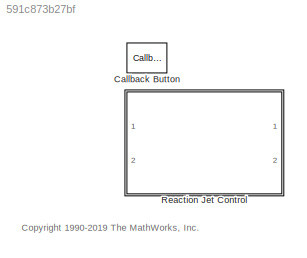
MODEL slx_591c873b27bf
KIND library
CONFIG AbsTol = auto
CONFIG EnableMultiTasking = off
CONFIG FixedStep = auto
CONFIG MaxStep = auto
CONFIG MinStep = auto
CONFIG RelTol = 1e-3
CONFIG SampleTimeConstraint = Unconstrained
CONFIG SolverName = VariableStepAuto
CONFIG StartTime = 0.0
CONFIG StopTime = 10.0
BLOCK [CallbackButton] Callback Button
  ButtonText = ?
  ClickFcn = showExample('simulink_aerospace/DevelopingTheApolloLunarModuleDigitalAutopilotExample')
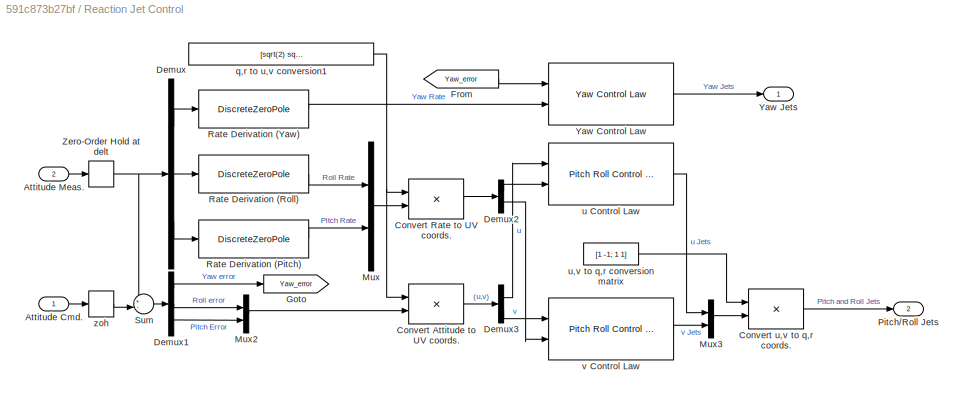
BLOCK [SubSystem] Reaction Jet Control
  Ports = [2, 2]
  RequestExecContextInheritance = off
BLOCK [Inport] Reaction Jet Control/Attitude Cmd.
  Unit = rad
BLOCK [Inport] Reaction Jet Control/Attitude Meas.
  Port = 2
  Unit = rad
BLOCK [Product] Reaction Jet Control/Convert Attitude to UV coords.
  InputSameDT = on
  Multiplication = Matrix(*)
  OutDataTypeStr = Inherit: Same as first input
  Ports = [2, 1]
  RndMeth = Zero
  SaturateOnIntegerOverflow = on
BLOCK [Product] Reaction Jet Control/Convert Rate to UV coords.
  InputSameDT = on
  Multiplication = Matrix(*)
  OutDataTypeStr = Inherit: Same as first input
  Ports = [2, 1]
  RndMeth = Zero
  SaturateOnIntegerOverflow = on
BLOCK [Product] Reaction Jet Control/Convert u,v to q,r coords.
  InputSameDT = on
  Multiplication = Matrix(*)
  OutDataTypeStr = Inherit: Same as first input
  Ports = [2, 1]
  RndMeth = Zero
  SaturateOnIntegerOverflow = on
BLOCK [Demux] Reaction Jet Control/Demux
  DisplayOption = none
  Outputs = 3
  Ports = [1, 3]
BLOCK [Demux] Reaction Jet Control/Demux1
  DisplayOption = none
  Outputs = 3
  Ports = [1, 3]
BLOCK [Demux] Reaction Jet Control/Demux2
  DisplayOption = none
  Outputs = 2
  Ports = [1, 2]
BLOCK [Demux] Reaction Jet Control/Demux3
  DisplayOption = none
  Outputs = 2
  Ports = [1, 2]
BLOCK [From] Reaction Jet Control/From
  GotoTag = Yaw_error
BLOCK [Goto] Reaction Jet Control/Goto
  GotoTag = Yaw_error
BLOCK [Mux] Reaction Jet Control/Mux
  DisplayOption = bar
  Inputs = 2
  Ports = [2, 1]
BLOCK [Mux] Reaction Jet Control/Mux2
  DisplayOption = bar
  Inputs = 2
  Ports = [2, 1]
BLOCK [Mux] Reaction Jet Control/Mux3
  DisplayOption = bar
  Inputs = 2
  Ports = [2, 1]
BLOCK [Outport] Reaction Jet Control/Pitch//Roll Jets
  InitialOutput = 0
  OutputWhenDisabled = reset
  Port = 2
  Unit = lbf
  VectorParamsAs1DForOutWhenUnconnected = off
BLOCK [DiscreteZeroPole] Reaction Jet Control/Rate Derivation (Pitch)
  Gain = 1/delt
  Poles = [0]
  SampleTime = -1
BLOCK [DiscreteZeroPole] Reaction Jet Control/Rate Derivation (Roll)
  Gain = 1/delt
  Poles = [0]
  SampleTime = -1
BLOCK [DiscreteZeroPole] Reaction Jet Control/Rate Derivation (Yaw)
  Gain = 1/delt
  Poles = [0]
  SampleTime = -1
BLOCK [Sum] Reaction Jet Control/Sum
  InputSameDT = on
  Inputs = +-|
  OutDataTypeStr = Inherit: Same as first input
  Ports = [2, 1]
  SaturateOnIntegerOverflow = on
BLOCK [Reference] Reaction Jet Control/Yaw Control Law  REF=aero_libdap/Yaw Control Law  (lib defined in mdl_b19959723b40, slx_4c0f97724d47, +1 more)
  Ports = [2, 1]
  SourceBlock = aero_libdap/Yaw Control Law
  SourceProductBaseCode = SL
  SourceType = Control Law
BLOCK [Outport] Reaction Jet Control/Yaw Jets
  InitialOutput = 0
  OutputWhenDisabled = reset
  Unit = lbf
  VectorParamsAs1DForOutWhenUnconnected = off
BLOCK [ZeroOrderHold] Reaction Jet Control/Zero-Order Hold at delt
  SampleTime = delt
BLOCK [Constant] Reaction Jet Control/q,r to u,v conversion1
  NameLocation = top
  Value = [sqrt(2) sqrt(2); -sqrt(2) sqrt(2)]/2
  VectorParams1D = off
BLOCK [Reference] Reaction Jet Control/u Control Law  REF=aero_libdap/Pitch Roll Control Law  (lib defined in mdl_b19959723b40, slx_4c0f97724d47, +1 more)
  Ports = [2, 1]
  SourceBlock = aero_libdap/Pitch Roll Control Law
  SourceProductBaseCode = SL
  SourceType = Control Law
BLOCK [Constant] Reaction Jet Control/u,v to q,r conversion matrix
  Value = [1 -1; 1 1]
  VectorParams1D = off
BLOCK [Reference] Reaction Jet Control/v Control Law  REF=aero_libdap/Pitch Roll Control Law  (lib defined in mdl_b19959723b40, slx_4c0f97724d47, +1 more)
  Ports = [2, 1]
  SourceBlock = aero_libdap/Pitch Roll Control Law
  SourceProductBaseCode = SL
  SourceType = Control Law
BLOCK [ZeroOrderHold] Reaction Jet Control/zoh
  NameLocation = top
  SampleTime = delt
ANNOTATION (root): <copyright redacted>
LINE Reaction Jet Control/Attitude Cmd.:1 -> Reaction Jet Control/zoh:1
LINE Reaction Jet Control/Attitude Meas.:1 -> Reaction Jet Control/Zero-Order Hold at delt:1
LINE Reaction Jet Control/Convert Attitude to UV coords.:1 -> Reaction Jet Control/Demux3:1
LINE Reaction Jet Control/Convert Rate to UV coords.:1 -> Reaction Jet Control/Demux2:1
LINE Reaction Jet Control/Convert u,v to q,r coords.:1 -> Reaction Jet Control/Pitch//Roll Jets:1
LINE Reaction Jet Control/Demux1:1 -> Reaction Jet Control/Goto:1
LINE Reaction Jet Control/Demux1:2 -> Reaction Jet Control/Mux2:1
LINE Reaction Jet Control/Demux1:3 -> Reaction Jet Control/Mux2:2
LINE Reaction Jet Control/Demux2:1 -> Reaction Jet Control/u Control Law:2
LINE Reaction Jet Control/Demux2:2 -> Reaction Jet Control/v Control Law:2
LINE Reaction Jet Control/Demux3:1 -> Reaction Jet Control/u Control Law:1
LINE Reaction Jet Control/Demux3:2 -> Reaction Jet Control/v Control Law:1
LINE Reaction Jet Control/Demux:1 -> Reaction Jet Control/Rate Derivation (Yaw):1
LINE Reaction Jet Control/Demux:2 -> Reaction Jet Control/Rate Derivation (Roll):1
LINE Reaction Jet Control/Demux:3 -> Reaction Jet Control/Rate Derivation (Pitch):1
LINE Reaction Jet Control/From:1 -> Reaction Jet Control/Yaw Control Law:1
LINE Reaction Jet Control/Mux2:1 -> Reaction Jet Control/Convert Attitude to UV coords.:2
LINE Reaction Jet Control/Mux3:1 -> Reaction Jet Control/Convert u,v to q,r coords.:2
LINE Reaction Jet Control/Mux:1 -> Reaction Jet Control/Convert Rate to UV coords.:2
LINE Reaction Jet Control/Rate Derivation (Pitch):1 -> Reaction Jet Control/Mux:2
LINE Reaction Jet Control/Rate Derivation (Roll):1 -> Reaction Jet Control/Mux:1
LINE Reaction Jet Control/Rate Derivation (Yaw):1 -> Reaction Jet Control/Yaw Control Law:2
LINE Reaction Jet Control/Sum:1 -> Reaction Jet Control/Demux1:1
LINE Reaction Jet Control/Yaw Control Law:1 -> Reaction Jet Control/Yaw Jets:1
NET Reaction Jet Control/Zero-Order Hold at delt:1 -> Reaction Jet Control/Demux:1, Reaction Jet Control/Sum:1
NET Reaction Jet Control/q,r to u,v conversion1:1 -> Reaction Jet Control/Convert Attitude to UV coords.:1, Reaction Jet Control/Convert Rate to UV coords.:1
LINE Reaction Jet Control/u Control Law:1 -> Reaction Jet Control/Mux3:1
LINE Reaction Jet Control/u,v to q,r conversion matrix:1 -> Reaction Jet Control/Convert u,v to q,r coords.:1
LINE Reaction Jet Control/v Control Law:1 -> Reaction Jet Control/Mux3:2
LINE Reaction Jet Control/zoh:1 -> Reaction Jet Control/Sum:2
note: NET lines group one-source signal fan-out (src -> all destinations, sorted); 1:1 wires keep LINE
